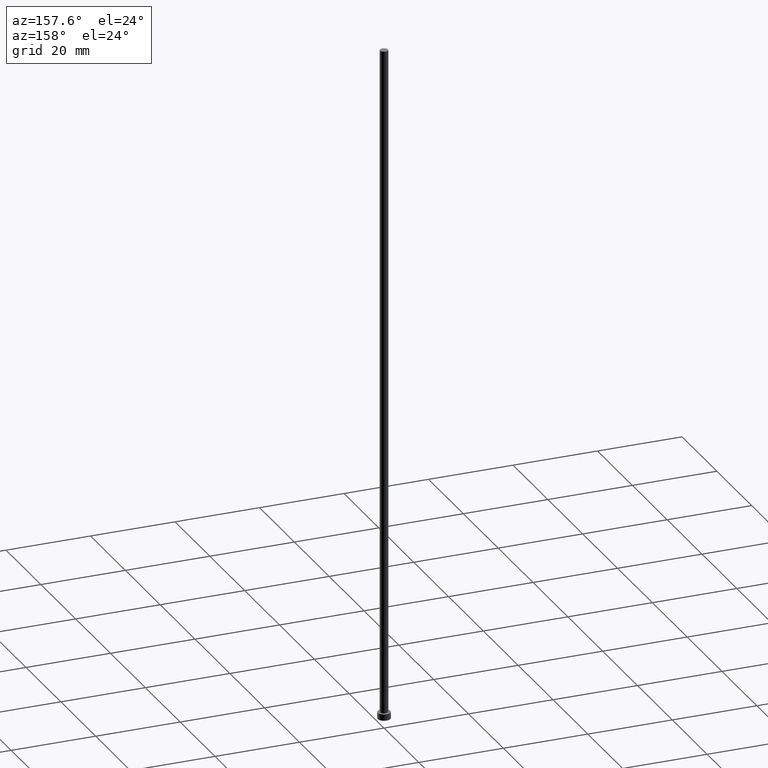
[diagram: clean part render]
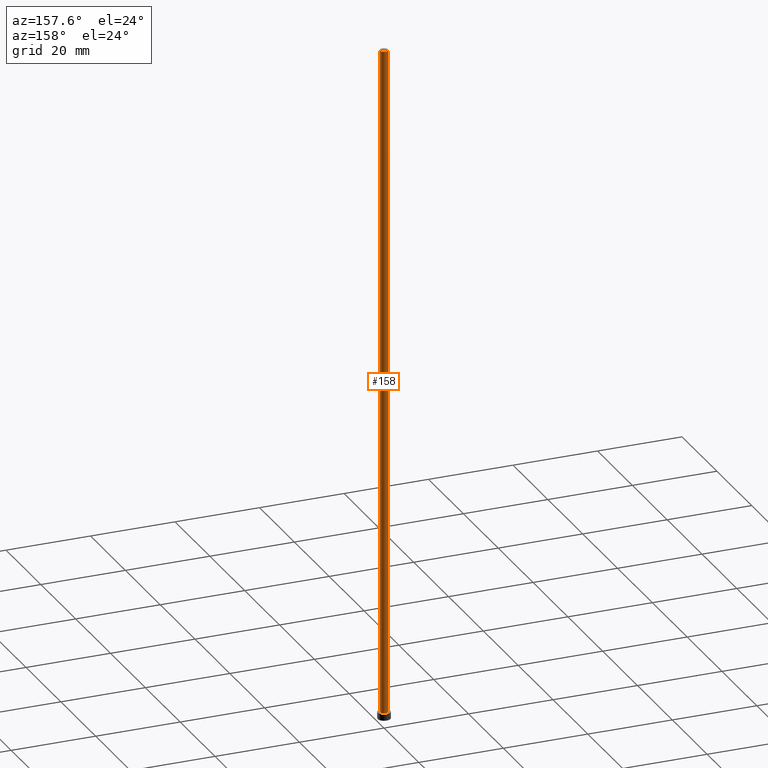
[diagram: same view with one face highlighted and labeled with its STEP entity id]
A machine part, auxiliary view. The second image highlights one B-rep face of the part: STEP entity #158.
In plain terms, the highlighted cylindrical surface (edge-blend (fillet) strip) has radius 0.95 mm, axis along (-0, -0, -1).
Its self-contained STEP definition (entity closure, byte-faithful):
#6 = VERTEX_POINT ( 'NONE', #226 ) ;
#9 = VERTEX_POINT ( 'NONE', #73 ) ;
#13 = CARTESIAN_POINT ( 'NONE',  ( 0.000000000000000000, 0.000000000000000000, 160.0000000000000000 ) ) ;
#31 = VERTEX_POINT ( 'NONE', #167 ) ;
#32 = DIRECTION ( 'NONE',  ( -0.000000000000000000, -0.000000000000000000, -1.000000000000000000 ) ) ;
#41 = DIRECTION ( 'NONE',  ( 0.000000000000000000, 0.000000000000000000, 1.000000000000000000 ) ) ;
#44 = DIRECTION ( 'NONE',  ( -1.000000000000000000, 0.000000000000000000, 0.000000000000000000 ) ) ;
#49 = EDGE_CURVE ( 'NONE', #31, #9, #216, .T. ) ;
#50 = VECTOR ( 'NONE', #32, 1000.000000000000000 ) ;
#65 = ORIENTED_EDGE ( 'NONE', *, *, #113, .T. ) ;
#67 = ORIENTED_EDGE ( 'NONE', *, *, #49, .F. ) ;
#73 = CARTESIAN_POINT ( 'NONE',  ( -0.9499999999999999556, 0.000000000000000000, 1.500000000000000000 ) ) ;
#75 = DIRECTION ( 'NONE',  ( -0.000000000000000000, -0.000000000000000000, -1.000000000000000000 ) ) ;
#77 = CARTESIAN_POINT ( 'NONE',  ( -0.9499999999999999556, 0.000000000000000000, 160.0000000000000000 ) ) ;
#88 = AXIS2_PLACEMENT_3D ( 'NONE', #96, #41, #212 ) ;
#95 = DIRECTION ( 'NONE',  ( 1.000000000000000000, 0.000000000000000000, 0.000000000000000000 ) ) ;
#96 = CARTESIAN_POINT ( 'NONE',  ( 0.000000000000000000, 0.000000000000000000, 1.500000000000000000 ) ) ;
#111 = AXIS2_PLACEMENT_3D ( 'NONE', #149, #244, #44 ) ;
#112 = VECTOR ( 'NONE', #75, 1000.000000000000000 ) ;
#113 = EDGE_CURVE ( 'NONE', #168, #9, #203, .T. ) ;
#117 = ORIENTED_EDGE ( 'NONE', *, *, #220, .T. ) ;
#146 = EDGE_LOOP ( 'NONE', ( #247, #117, #65, #67 ) ) ;
#147 = CARTESIAN_POINT ( 'NONE',  ( 0.9499999999999999556, 1.163414459189985682E-16, 160.0000000000000000 ) ) ;
#149 = CARTESIAN_POINT ( 'NONE',  ( 0.000000000000000000, 0.000000000000000000, 160.0000000000000000 ) ) ;
#150 = CARTESIAN_POINT ( 'NONE',  ( 0.9499999999999999556, 1.163414459189985682E-16, 1.500000000000000000 ) ) ;
#158 = ADVANCED_FACE ( 'NONE', ( #196 ), #249, .T. ) ;
#164 = LINE ( 'NONE', #147, #50 ) ;
#167 = CARTESIAN_POINT ( 'NONE',  ( -0.9499999999999999556, 0.000000000000000000, 160.0000000000000000 ) ) ;
#168 = VERTEX_POINT ( 'NONE', #150 ) ;
#170 = DIRECTION ( 'NONE',  ( 0.000000000000000000, 0.000000000000000000, 1.000000000000000000 ) ) ;
#196 = FACE_OUTER_BOUND ( 'NONE', #146, .T. ) ;
#203 = CIRCLE ( 'NONE', #88, 0.9499999999999999556 ) ;
#212 = DIRECTION ( 'NONE',  ( 1.000000000000000000, 0.000000000000000000, 0.000000000000000000 ) ) ;
#216 = LINE ( 'NONE', #77, #112 ) ;
#219 = AXIS2_PLACEMENT_3D ( 'NONE', #13, #170, #95 ) ;
#220 = EDGE_CURVE ( 'NONE', #6, #168, #164, .T. ) ;
#226 = CARTESIAN_POINT ( 'NONE',  ( 0.9499999999999999556, 1.163414459189985682E-16, 160.0000000000000000 ) ) ;
#228 = EDGE_CURVE ( 'NONE', #6, #31, #239, .T. ) ;
#239 = CIRCLE ( 'NONE', #219, 0.9499999999999999556 ) ;
#244 = DIRECTION ( 'NONE',  ( -0.000000000000000000, -0.000000000000000000, -1.000000000000000000 ) ) ;
#247 = ORIENTED_EDGE ( 'NONE', *, *, #228, .F. ) ;
#249 = CYLINDRICAL_SURFACE ( 'NONE', #111, 0.9499999999999999556 ) ;